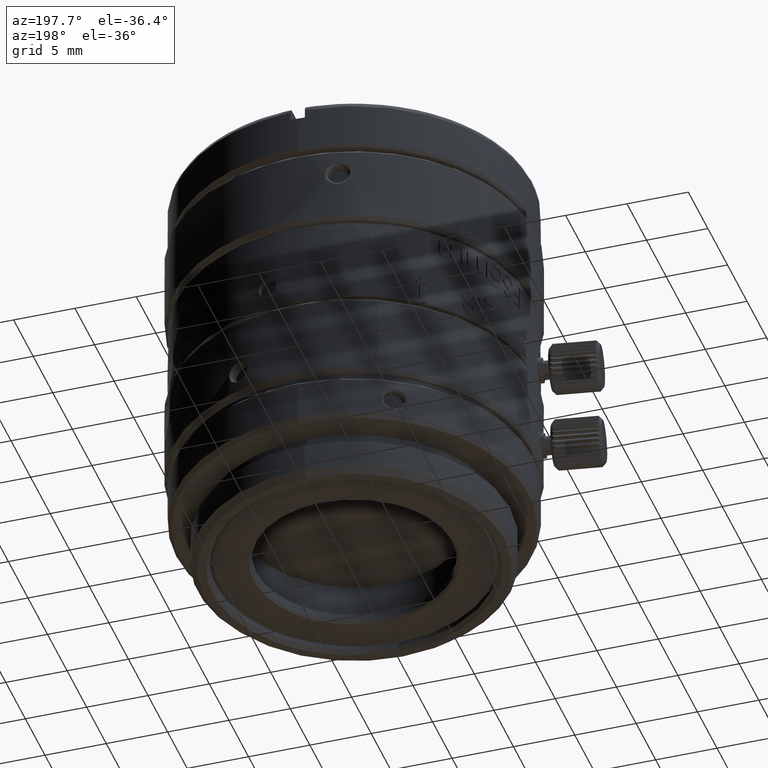
[diagram: clean part render]
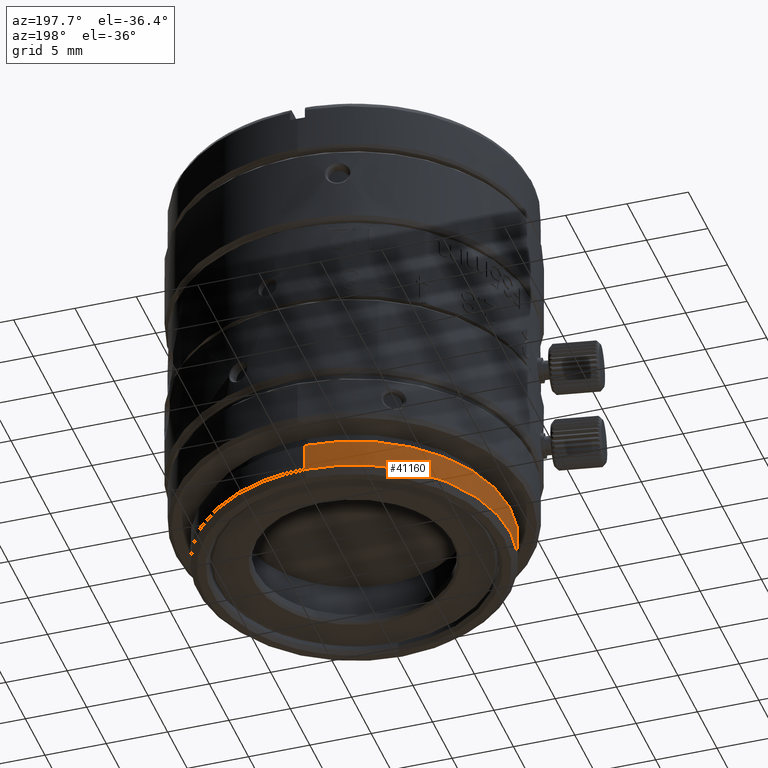
[diagram: same view with one face highlighted and labeled with its STEP entity id]
A machine part, auxiliary view. The second image highlights one B-rep face of the part: STEP entity #41160.
In plain terms, the highlighted face is a freeform B-spline surface patch.
Its self-contained STEP definition (entity closure, byte-faithful):
#1016 = CARTESIAN_POINT ( 'NONE',  ( -3.122849338673664466E-15, 12.75000000000000000, -3.460671812000000180 ) ) ;
#1902 = ORIENTED_EDGE ( 'NONE', *, *, #11919, .F. ) ;
#2638 = CARTESIAN_POINT ( 'NONE',  ( -11.45909031832400160, 5.652664397071999858, -3.460671811999998848 ) ) ;
#3055 = CARTESIAN_POINT ( 'NONE',  ( -7.779607648031997336, 10.13612697596400025, -3.460671811999999292 ) ) ;
#4376 = CARTESIAN_POINT ( 'NONE',  ( -25.49999999476985479, -12.74999998953972202, -5.760671812000000891 ) ) ;
#4733 = CARTESIAN_POINT ( 'NONE',  ( -25.49999998725000694, 12.74999999542054674, -5.760671812000000003 ) ) ;
#5387 = CARTESIAN_POINT ( 'NONE',  ( -7.632420668859469187E-10, 12.74999999789199912, -3.460671812000000180 ) ) ;
#5590 = CARTESIAN_POINT ( 'NONE',  ( -12.09983779752000288, -4.105763124232005623, -3.460671812000000624 ) ) ;
#5981 =( BOUNDED_SURFACE ( )  B_SPLINE_SURFACE ( 1, 3, ( 
 ( #27015, #11084, #20928, #1016 ),
 ( #20317, #4376, #17576, #17378 ) ),
 .UNSPECIFIED., .F., .F., .T. ) 
 B_SPLINE_SURFACE_WITH_KNOTS ( ( 2, 2 ),
 ( 4, 4 ),
 ( 0.0000000000000000000, 1.000000000000000000 ),
 ( 0.0000000000000000000, 1.000000000000000000 ),
 .UNSPECIFIED. ) 
 GEOMETRIC_REPRESENTATION_ITEM ( )  RATIONAL_B_SPLINE_SURFACE ( (
 ( 1.000000000000000000, 0.3333333334700690487, 0.3333333334700690487, 1.000000000000000000),
 ( 1.000000000000000000, 0.3333333334700690487, 0.3333333334700690487, 1.000000000000000000) ) ) 
 REPRESENTATION_ITEM ( '' )  SURFACE ( )  );
#6220 = CARTESIAN_POINT ( 'NONE',  ( -3.308492405746005449, -12.34168722529600082, -3.460671812000000624 ) ) ;
#6425 = CARTESIAN_POINT ( 'NONE',  ( -6.387433301831999977, -11.06634813336800427, -3.460671812000000624 ) ) ;
#8590 = CARTESIAN_POINT ( 'NONE',  ( -7.632420668859469187E-10, 12.74999999789199912, -3.460671812000000180 ) ) ;
#8747 = CARTESIAN_POINT ( 'NONE',  ( -11.45909030112000337, -5.652664397071997193, -3.460671812000000624 ) ) ;
#9049 = B_SPLINE_CURVE_WITH_KNOTS ( 'NONE', 3,
 ( #5387, #25495, #37896, #9164, #15868, #41048, #9579, #3055, #12291, #22365, #28660, #38313, #2638, #37684, #37474, #15457, #40839, #41459, #12713, #15667, #5590, #8747, #34753, #21746, #18374, #25084, #32010, #6425, #19001, #18794, #6220, #21955, #31185, #24673 ),
 .UNSPECIFIED., .F., .F.,
 ( 4, 2, 2, 2, 2, 2, 2, 2, 2, 2, 2, 2, 2, 2, 2, 2, 4 ),
 ( 1.570796326794895004, 1.767145867644257295, 1.963495408493619365, 2.159844949342981657, 2.356194490192343505, 2.552544031041705797, 2.748893571891067644, 2.945243112740429936, 3.141592653589792228, 3.337942194439154520, 3.534291735288516811, 3.730641276137879103, 3.926990816987241395, 4.123340357836603687, 4.319689898685965979, 4.516039439535328270, 4.712388980384689674 ),
 .UNSPECIFIED. ) ;
#9164 = CARTESIAN_POINT ( 'NONE',  ( -3.308492405745996567, 12.34168720809200437, -3.460671812000000624 ) ) ;
#9579 = CARTESIAN_POINT ( 'NONE',  ( -6.387433301832000865, 11.06634811616399716, -3.460671811999998848 ) ) ;
#11084 = CARTESIAN_POINT ( 'NONE',  ( -25.49999999476985479, -12.74999998953972202, -3.460671812000000624 ) ) ;
#11454 = EDGE_CURVE ( 'NONE', #31306, #36700, #38369, .T. ) ;
#11919 = EDGE_CURVE ( 'NONE', #35734, #26802, #16761, .T. ) ;
#12291 = CARTESIAN_POINT ( 'NONE',  ( -8.423637977303991775, 9.607584948191998819, -3.460671811999999736 ) ) ;
#12713 = CARTESIAN_POINT ( 'NONE',  ( -12.66833745720399662, -1.666310804642014753, -3.460671812000000624 ) ) ;
#14185 = CARTESIAN_POINT ( 'NONE',  ( 0.0000000000000000000, 12.75000000000000000, -5.760671812000000003 ) ) ;
#15457 = CARTESIAN_POINT ( 'NONE',  ( -12.66833743999999840, 1.666310804642011867, -3.460671812000001069 ) ) ;
#15667 = CARTESIAN_POINT ( 'NONE',  ( -12.34168720809200614, -3.308492405745988574, -3.460671811999999292 ) ) ;
#15868 = CARTESIAN_POINT ( 'NONE',  ( -4.105763124232010952, 12.09983779751999755, -3.460671812000000624 ) ) ;
#16694 = EDGE_CURVE ( 'NONE', #26802, #31306, #9049, .T. ) ;
#16761 = B_SPLINE_CURVE_WITH_KNOTS ( 'NONE', 1,
 ( #37949, #8590 ),
 .UNSPECIFIED., .F., .F.,
 ( 2, 2 ),
 ( -1.000000000000000000, 0.0000000000000000000 ),
 .UNSPECIFIED. ) ;
#17378 = CARTESIAN_POINT ( 'NONE',  ( -3.122849338673664466E-15, 12.75000000000000000, -5.760671812000000003 ) ) ;
#17576 = CARTESIAN_POINT ( 'NONE',  ( -25.49999998953971669, 12.74999999999999289, -5.760671812000000891 ) ) ;
#18374 = CARTESIAN_POINT ( 'NONE',  ( -9.607584948191988161, -8.423637977304005986, -3.460671811999999736 ) ) ;
#18794 = CARTESIAN_POINT ( 'NONE',  ( -4.105763124232007399, -12.09983778031599222, -3.460671812000000180 ) ) ;
#19001 = CARTESIAN_POINT ( 'NONE',  ( -5.652664397071990976, -11.45909031832400871, -3.460671812000000624 ) ) ;
#20317 = CARTESIAN_POINT ( 'NONE',  ( -5.230137427140944328E-09, -12.75000000000000000, -5.760671812000000003 ) ) ;
#20890 = CARTESIAN_POINT ( 'NONE',  ( 0.0000000000000000000, -12.75000000000000000, -5.760671812000000003 ) ) ;
#20927 =( BOUNDED_CURVE ( )  B_SPLINE_CURVE ( 3, ( #14185, #4733, #40376, #33282 ),
 .UNSPECIFIED., .F., .T. ) 
 B_SPLINE_CURVE_WITH_KNOTS ( ( 4, 4 ),
 ( -4.712388980384689674, -1.570796326794894782 ),
 .UNSPECIFIED. ) 
 CURVE ( )  GEOMETRIC_REPRESENTATION_ITEM ( )  RATIONAL_B_SPLINE_CURVE ( ( 1.000000000000000000, 0.3333333335299309419, 0.3333333335299309419, 1.000000000000000000 ) ) 
 REPRESENTATION_ITEM ( '' )  );
#20928 = CARTESIAN_POINT ( 'NONE',  ( -25.49999998953971669, 12.74999999999999289, -3.460671812000000624 ) ) ;
#21746 = CARTESIAN_POINT ( 'NONE',  ( -10.13612697596399848, -7.779607648032000888, -3.460671811999999292 ) ) ;
#21955 = CARTESIAN_POINT ( 'NONE',  ( -1.666310804641998100, -12.66833744000000195, -3.460671811999999736 ) ) ;
#22365 = CARTESIAN_POINT ( 'NONE',  ( -9.607584948191997043, 8.423637977303995328, -3.460671811999999736 ) ) ;
#22763 = ORIENTED_EDGE ( 'NONE', *, *, #16694, .F. ) ;
#23264 = EDGE_CURVE ( 'NONE', #35734, #36700, #20927, .T. ) ;
#23704 = ORIENTED_EDGE ( 'NONE', *, *, #23264, .T. ) ;
#24424 = CARTESIAN_POINT ( 'NONE',  ( 0.0000000000000000000, 12.75000000000000000, -5.760671812000000003 ) ) ;
#24673 = CARTESIAN_POINT ( 'NONE',  ( -3.486758284760630241E-09, -12.74999999789199912, -3.460671812000000180 ) ) ;
#25084 = CARTESIAN_POINT ( 'NONE',  ( -8.423637977304000657, -9.607584948191991714, -3.460671812000000624 ) ) ;
#25495 = CARTESIAN_POINT ( 'NONE',  ( -0.8371769362439879236, 12.74999999367600090, -3.460671812000000624 ) ) ;
#26802 = VERTEX_POINT ( 'NONE', #33732 ) ;
#27015 = CARTESIAN_POINT ( 'NONE',  ( -5.230137427140944328E-09, -12.75000000000000000, -3.460671812000000180 ) ) ;
#28113 = EDGE_LOOP ( 'NONE', ( #22763, #1902, #23704, #29322 ) ) ;
#28660 = CARTESIAN_POINT ( 'NONE',  ( -10.13612695876000025, 7.779607648031992895, -3.460671811999998848 ) ) ;
#29322 = ORIENTED_EDGE ( 'NONE', *, *, #11454, .F. ) ;
#31185 = CARTESIAN_POINT ( 'NONE',  ( -0.8371769362440086848, -12.74999999367599735, -3.460671811999999736 ) ) ;
#31306 = VERTEX_POINT ( 'NONE', #40324 ) ;
#32010 = CARTESIAN_POINT ( 'NONE',  ( -7.779607648032001777, -10.13612695876000025, -3.460671812000001069 ) ) ;
#33282 = CARTESIAN_POINT ( 'NONE',  ( 0.0000000000000000000, -12.75000000000000000, -5.760671812000000003 ) ) ;
#33732 = CARTESIAN_POINT ( 'NONE',  ( -7.632420668859469187E-10, 12.74999999789199912, -3.460671812000000180 ) ) ;
#34753 = CARTESIAN_POINT ( 'NONE',  ( -11.06634811616399716, -6.387433301831995536, -3.460671812000000624 ) ) ;
#34902 = CARTESIAN_POINT ( 'NONE',  ( 0.0000000000000000000, -12.75000000000000000, -5.760671812000000003 ) ) ;
#35734 = VERTEX_POINT ( 'NONE', #24424 ) ;
#36700 = VERTEX_POINT ( 'NONE', #20890 ) ;
#37474 = CARTESIAN_POINT ( 'NONE',  ( -12.34168722529600259, 3.308492405745991238, -3.460671812000000180 ) ) ;
#37684 = CARTESIAN_POINT ( 'NONE',  ( -12.09983778031599932, 4.105763124231993189, -3.460671812000000624 ) ) ;
#37896 = CARTESIAN_POINT ( 'NONE',  ( -1.666310804642005872, 12.66833745720400373, -3.460671812000000624 ) ) ;
#37949 = CARTESIAN_POINT ( 'NONE',  ( 0.0000000000000000000, 12.75000000000000000, -5.760671812000000003 ) ) ;
#38313 = CARTESIAN_POINT ( 'NONE',  ( -11.06634813336799539, 6.387433301832005306, -3.460671811999999292 ) ) ;
#38369 = B_SPLINE_CURVE_WITH_KNOTS ( 'NONE', 1,
 ( #40565, #34902 ),
 .UNSPECIFIED., .F., .F.,
 ( 2, 2 ),
 ( -1.000000000000000000, 0.0000000000000000000 ),
 .UNSPECIFIED. ) ;
#38572 = FACE_OUTER_BOUND ( 'NONE', #28113, .T. ) ;
#40324 = CARTESIAN_POINT ( 'NONE',  ( -3.486758284760630241E-09, -12.74999999789199912, -3.460671812000000180 ) ) ;
#40376 = CARTESIAN_POINT ( 'NONE',  ( -25.49999999019041397, -12.74999998953973623, -5.760671811999999115 ) ) ;
#40565 = CARTESIAN_POINT ( 'NONE',  ( -3.486758284760630241E-09, -12.74999999789199912, -3.460671812000000180 ) ) ;
#40839 = CARTESIAN_POINT ( 'NONE',  ( -12.74999999367600090, 0.8371769362439979156, -3.460671812000000624 ) ) ;
#41048 = CARTESIAN_POINT ( 'NONE',  ( -5.652664397071982094, 11.45909030112000337, -3.460671811999999292 ) ) ;
#41160 = ADVANCED_FACE ( 'NONE', ( #38572 ), #5981, .F. ) ;
#41459 = CARTESIAN_POINT ( 'NONE',  ( -12.74999999367600090, -0.8371769362439979156, -3.460671811999999292 ) ) ;